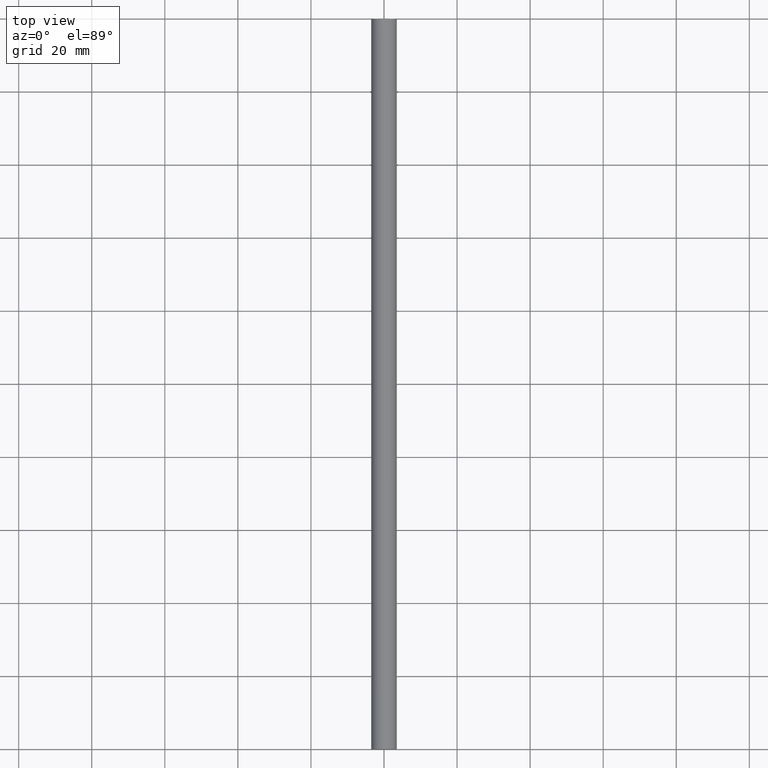
[diagram: clean part render]
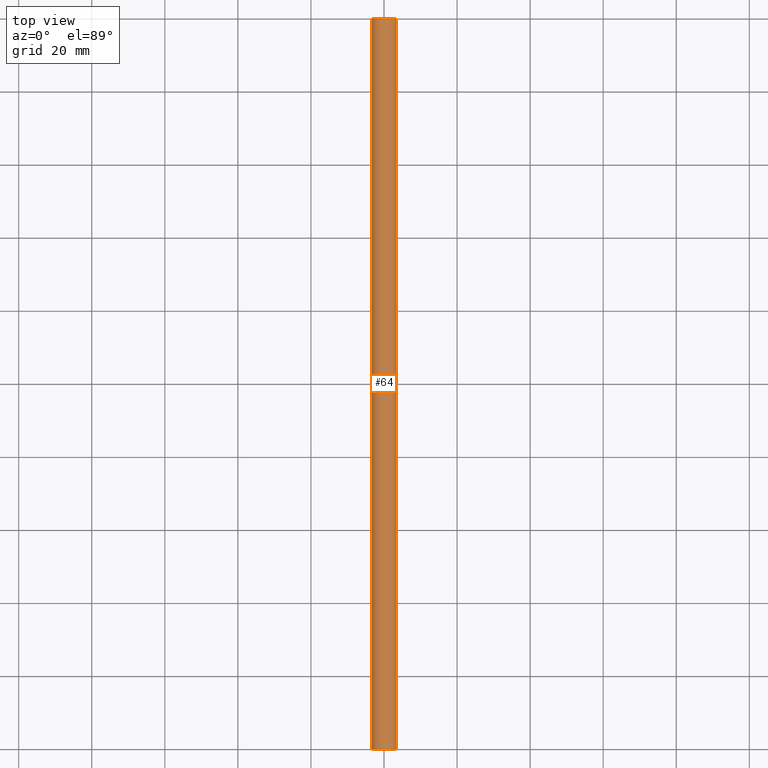
[diagram: same view with one face highlighted and labeled with its STEP entity id]
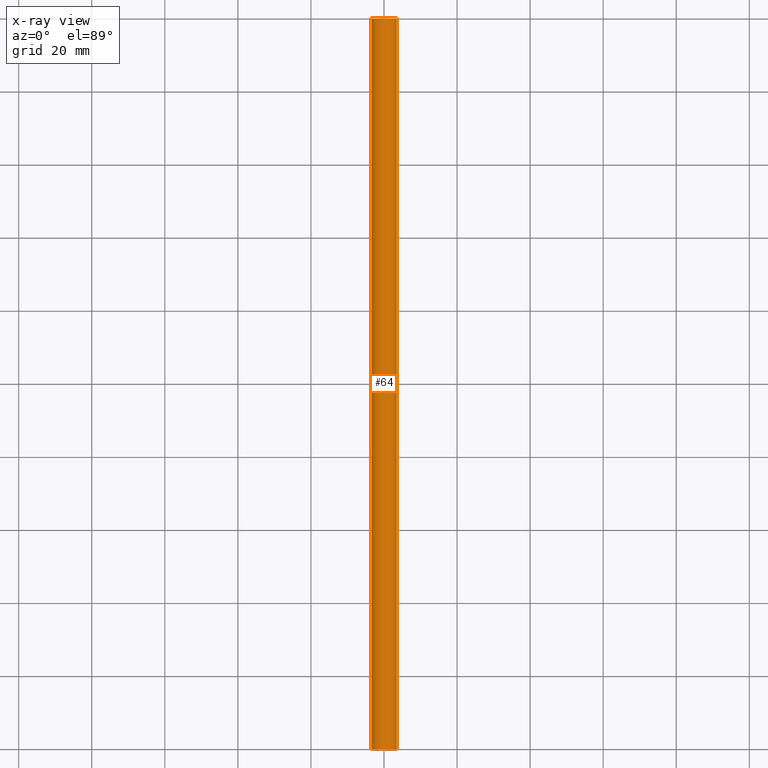
[diagram: x-ray of the same camera — body ghosted, the highlighted face saturated]
A machine part, top view. The second image highlights one B-rep face of the part: STEP entity #64.
The next image is the same camera in x-ray: the body ghosted, the highlighted face saturated — about 0% of this face is hidden behind the body in this view.
In plain terms, the highlighted cylindrical surface (edge-blend (fillet) strip) has radius 3.5 mm, axis along (0, -1, 0).
Its self-contained STEP definition (entity closure, byte-faithful):
#15 = FACE_OUTER_BOUND ( 'NONE', #155, .T. ) ;
#16 = EDGE_CURVE ( 'NONE', #73, #200, #29, .T. ) ;
#23 = VECTOR ( 'NONE', #171, 1000.000000000000000 ) ;
#26 = DIRECTION ( 'NONE',  ( 0.0000000000000000000, -1.000000000000000000, 0.0000000000000000000 ) ) ;
#29 = LINE ( 'NONE', #201, #85 ) ;
#32 = AXIS2_PLACEMENT_3D ( 'NONE', #62, #161, #128 ) ;
#56 = AXIS2_PLACEMENT_3D ( 'NONE', #125, #122, #173 ) ;
#62 = CARTESIAN_POINT ( 'NONE',  ( 0.0000000000000000000, 1000.000000000000000, -0.5000000000000000000 ) ) ;
#64 = ADVANCED_FACE ( 'NONE', ( #15 ), #89, .T. ) ;
#68 = ORIENTED_EDGE ( 'NONE', *, *, #129, .T. ) ;
#73 = VERTEX_POINT ( 'NONE', #204 ) ;
#76 = CARTESIAN_POINT ( 'NONE',  ( -3.500000000000000000, 200.0000000000000000, -0.5000000000000000000 ) ) ;
#81 = EDGE_CURVE ( 'NONE', #200, #184, #115, .T. ) ;
#85 = VECTOR ( 'NONE', #26, 1000.000000000000000 ) ;
#89 = CYLINDRICAL_SURFACE ( 'NONE', #32, 3.500000000000000000 ) ;
#90 = ORIENTED_EDGE ( 'NONE', *, *, #16, .F. ) ;
#92 = EDGE_CURVE ( 'NONE', #117, #184, #217, .T. ) ;
#95 = CARTESIAN_POINT ( 'NONE',  ( -3.500000000000000000, 0.0000000000000000000, -0.5000000000000000000 ) ) ;
#96 = CARTESIAN_POINT ( 'NONE',  ( 3.500000000000000000, 0.0000000000000000000, -0.5000000000000000000 ) ) ;
#105 = CARTESIAN_POINT ( 'NONE',  ( -3.500000000000000000, 1000.000000000000000, -0.5000000000000000000 ) ) ;
#115 = CIRCLE ( 'NONE', #157, 3.500000000000000000 ) ;
#117 = VERTEX_POINT ( 'NONE', #76 ) ;
#122 = DIRECTION ( 'NONE',  ( -0.0000000000000000000, -1.000000000000000000, -0.0000000000000000000 ) ) ;
#125 = CARTESIAN_POINT ( 'NONE',  ( 0.0000000000000000000, 200.0000000000000000, -0.5000000000000000000 ) ) ;
#128 = DIRECTION ( 'NONE',  ( 0.0000000000000000000, 0.0000000000000000000, -1.000000000000000000 ) ) ;
#129 = EDGE_CURVE ( 'NONE', #73, #117, #172, .T. ) ;
#154 = CARTESIAN_POINT ( 'NONE',  ( 0.0000000000000000000, 0.0000000000000000000, -0.5000000000000000000 ) ) ;
#155 = EDGE_LOOP ( 'NONE', ( #177, #90, #68, #233 ) ) ;
#157 = AXIS2_PLACEMENT_3D ( 'NONE', #154, #189, #227 ) ;
#161 = DIRECTION ( 'NONE',  ( 0.0000000000000000000, -1.000000000000000000, 0.0000000000000000000 ) ) ;
#171 = DIRECTION ( 'NONE',  ( 0.0000000000000000000, -1.000000000000000000, 0.0000000000000000000 ) ) ;
#172 = CIRCLE ( 'NONE', #56, 3.500000000000000000 ) ;
#173 = DIRECTION ( 'NONE',  ( 0.0000000000000000000, 0.0000000000000000000, 1.000000000000000000 ) ) ;
#177 = ORIENTED_EDGE ( 'NONE', *, *, #81, .F. ) ;
#184 = VERTEX_POINT ( 'NONE', #95 ) ;
#189 = DIRECTION ( 'NONE',  ( -0.0000000000000000000, -1.000000000000000000, -0.0000000000000000000 ) ) ;
#200 = VERTEX_POINT ( 'NONE', #96 ) ;
#201 = CARTESIAN_POINT ( 'NONE',  ( 3.500000000000000000, 1000.000000000000000, -0.5000000000000000000 ) ) ;
#204 = CARTESIAN_POINT ( 'NONE',  ( 3.500000000000000000, 200.0000000000000000, -0.5000000000000000000 ) ) ;
#217 = LINE ( 'NONE', #105, #23 ) ;
#227 = DIRECTION ( 'NONE',  ( 0.0000000000000000000, 0.0000000000000000000, 1.000000000000000000 ) ) ;
#233 = ORIENTED_EDGE ( 'NONE', *, *, #92, .T. ) ;